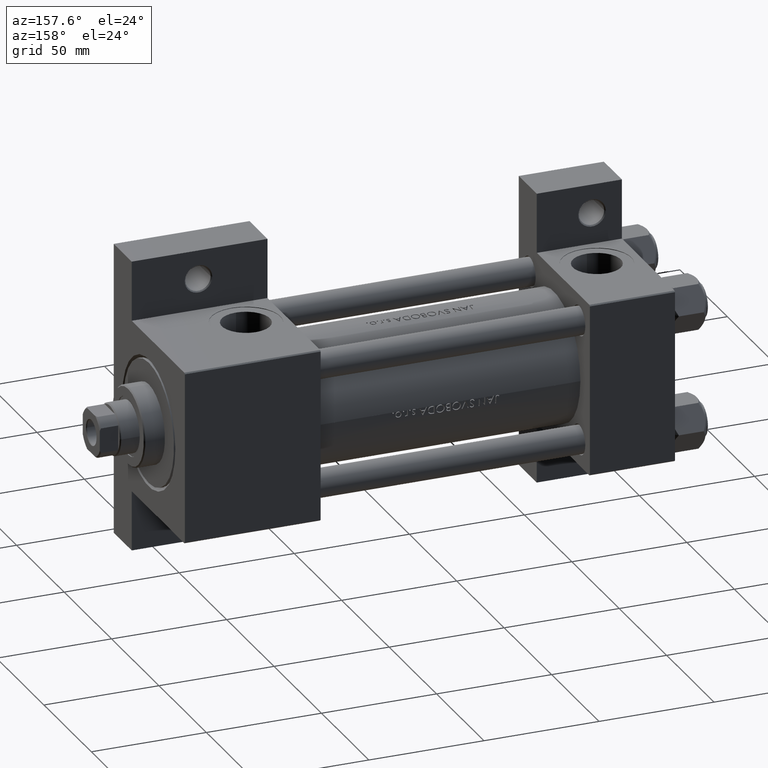
[diagram: clean part render]
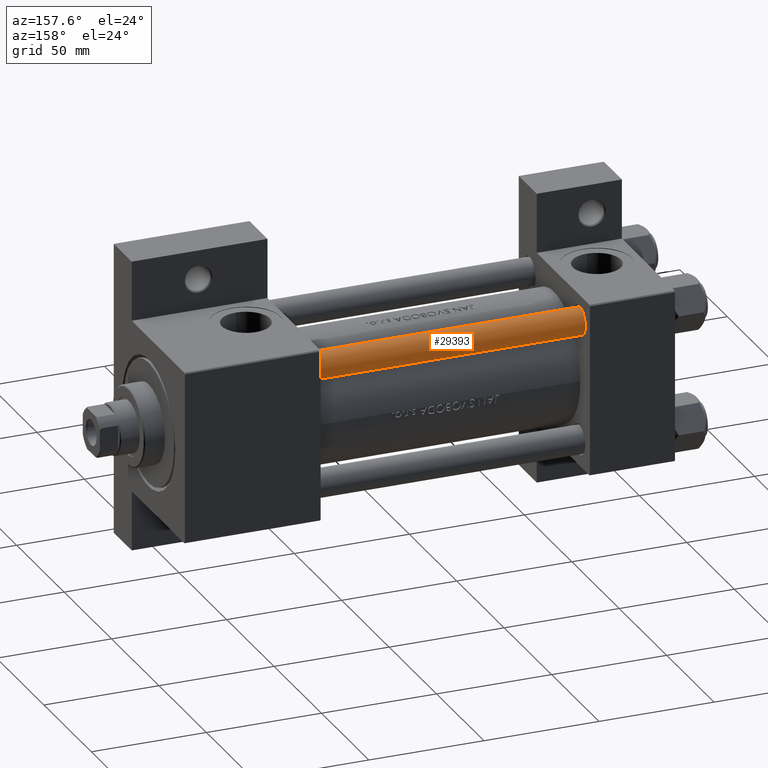
[diagram: same view with one face highlighted and labeled with its STEP entity id]
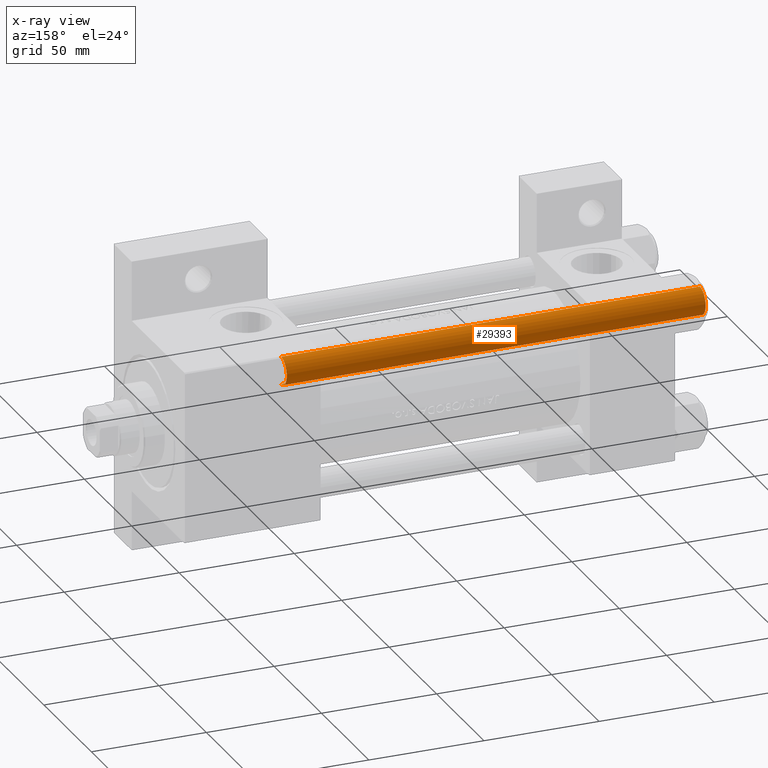
[diagram: x-ray of the same camera — body ghosted, the highlighted face saturated]
A machine part, auxiliary view. The second image highlights one B-rep face of the part: STEP entity #29393.
The next image is the same camera in x-ray: the body ghosted, the highlighted face saturated — about 0% of this face is hidden behind the body in this view.
In plain terms, the highlighted cylindrical surface (edge-blend (fillet) strip) has radius 6 mm, axis along (-1, -0, -0).
Its self-contained STEP definition (entity closure, byte-faithful):
#175 = EDGE_CURVE ( 'NONE', #47630, #16640, #30216, .T. ) ;
#564 = DIRECTION ( 'NONE',  ( -0.000000000000000000, -0.000000000000000000, -1.000000000000000000 ) ) ;
#2838 = VERTEX_POINT ( 'NONE', #15623 ) ;
#3986 = CIRCLE ( 'NONE', #33411, 6.000000000000000888 ) ;
#4318 = CYLINDRICAL_SURFACE ( 'NONE', #44529, 6.000000000000000888 ) ;
#5671 = AXIS2_PLACEMENT_3D ( 'NONE', #20446, #24931, #13463 ) ;
#5739 = VECTOR ( 'NONE', #16077, 1000.000000000000000 ) ;
#7997 = ORIENTED_EDGE ( 'NONE', *, *, #175, .T. ) ;
#9029 = DIRECTION ( 'NONE',  ( -1.000000000000000000, 0.000000000000000000, 0.000000000000000000 ) ) ;
#9414 = ORIENTED_EDGE ( 'NONE', *, *, #15065, .T. ) ;
#11596 = LINE ( 'NONE', #42003, #5739 ) ;
#11623 = ORIENTED_EDGE ( 'NONE', *, *, #34669, .F. ) ;
#13463 = DIRECTION ( 'NONE',  ( 1.000000000000000000, 0.000000000000000000, 0.000000000000000000 ) ) ;
#15065 = EDGE_CURVE ( 'NONE', #16640, #40353, #3986, .T. ) ;
#15623 = CARTESIAN_POINT ( 'NONE',  ( -6.000000000000000888, 0.000000000000000000, 182.5000000000000000 ) ) ;
#16077 = DIRECTION ( 'NONE',  ( -0.000000000000000000, -0.000000000000000000, -1.000000000000000000 ) ) ;
#16640 = VERTEX_POINT ( 'NONE', #38243 ) ;
#20446 = CARTESIAN_POINT ( 'NONE',  ( 0.000000000000000000, 0.000000000000000000, 182.5000000000000000 ) ) ;
#23200 = DIRECTION ( 'NONE',  ( 1.000000000000000000, 0.000000000000000000, 0.000000000000000000 ) ) ;
#23436 = CARTESIAN_POINT ( 'NONE',  ( 0.000000000000000000, 0.000000000000000000, 0.5000000000000281997 ) ) ;
#23967 = CARTESIAN_POINT ( 'NONE',  ( 6.000000000000000888, 7.347880794884120722E-16, 182.5000000000000000 ) ) ;
#24931 = DIRECTION ( 'NONE',  ( 0.000000000000000000, 0.000000000000000000, -1.000000000000000000 ) ) ;
#26365 = CIRCLE ( 'NONE', #5671, 6.000000000000000888 ) ;
#29393 = ADVANCED_FACE ( 'NONE', ( #34972 ), #4318, .T. ) ;
#30216 = LINE ( 'NONE', #45404, #31495 ) ;
#30598 = CARTESIAN_POINT ( 'NONE',  ( -6.000000000000000888, 0.000000000000000000, 0.5000000000000281997 ) ) ;
#31495 = VECTOR ( 'NONE', #564, 1000.000000000000000 ) ;
#31827 = EDGE_CURVE ( 'NONE', #2838, #47630, #26365, .T. ) ;
#33411 = AXIS2_PLACEMENT_3D ( 'NONE', #23436, #45372, #23200 ) ;
#34669 = EDGE_CURVE ( 'NONE', #2838, #40353, #11596, .T. ) ;
#34972 = FACE_OUTER_BOUND ( 'NONE', #46128, .T. ) ;
#36376 = ORIENTED_EDGE ( 'NONE', *, *, #31827, .T. ) ;
#38243 = CARTESIAN_POINT ( 'NONE',  ( 6.000000000000000888, 7.347880794884120722E-16, 0.5000000000000281997 ) ) ;
#40353 = VERTEX_POINT ( 'NONE', #30598 ) ;
#42003 = CARTESIAN_POINT ( 'NONE',  ( -6.000000000000000888, 0.000000000000000000, 183.0000000000000000 ) ) ;
#44529 = AXIS2_PLACEMENT_3D ( 'NONE', #45915, #46659, #9029 ) ;
#45372 = DIRECTION ( 'NONE',  ( -0.000000000000000000, -0.000000000000000000, 1.000000000000000000 ) ) ;
#45404 = CARTESIAN_POINT ( 'NONE',  ( 6.000000000000000888, 7.347880794884120722E-16, 183.0000000000000000 ) ) ;
#45915 = CARTESIAN_POINT ( 'NONE',  ( 0.000000000000000000, 0.000000000000000000, 183.0000000000000000 ) ) ;
#46128 = EDGE_LOOP ( 'NONE', ( #36376, #7997, #9414, #11623 ) ) ;
#46659 = DIRECTION ( 'NONE',  ( -0.000000000000000000, -0.000000000000000000, -1.000000000000000000 ) ) ;
#47630 = VERTEX_POINT ( 'NONE', #23967 ) ;